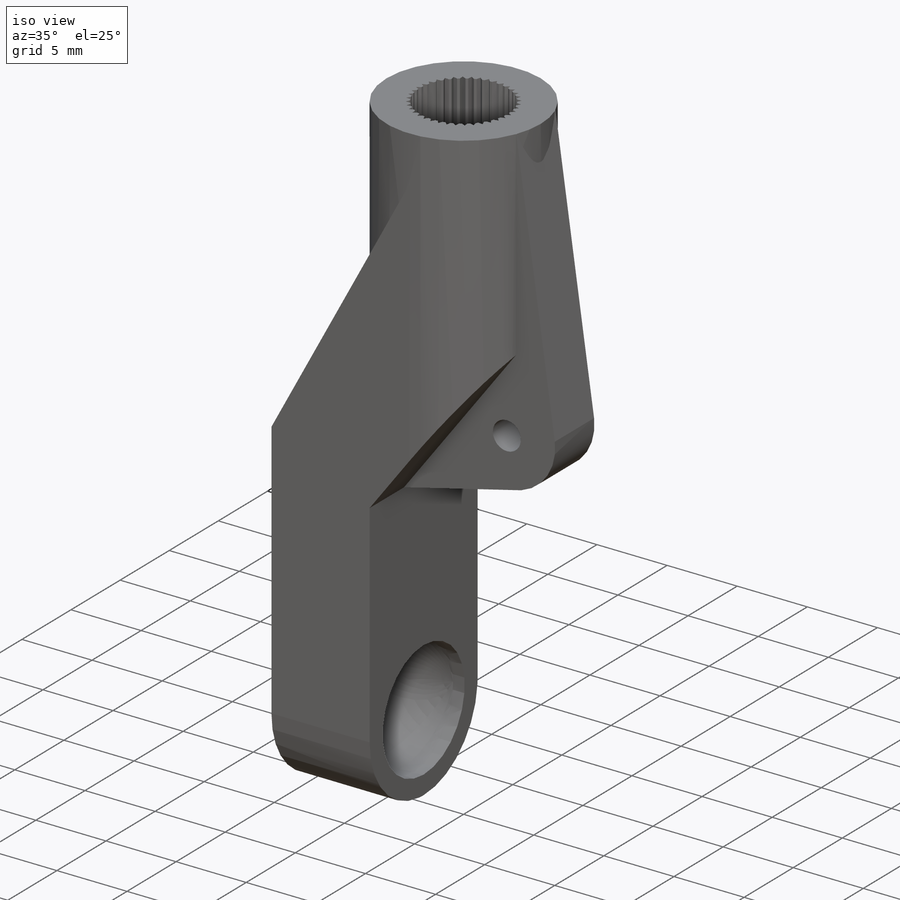
[diagram: iso view]
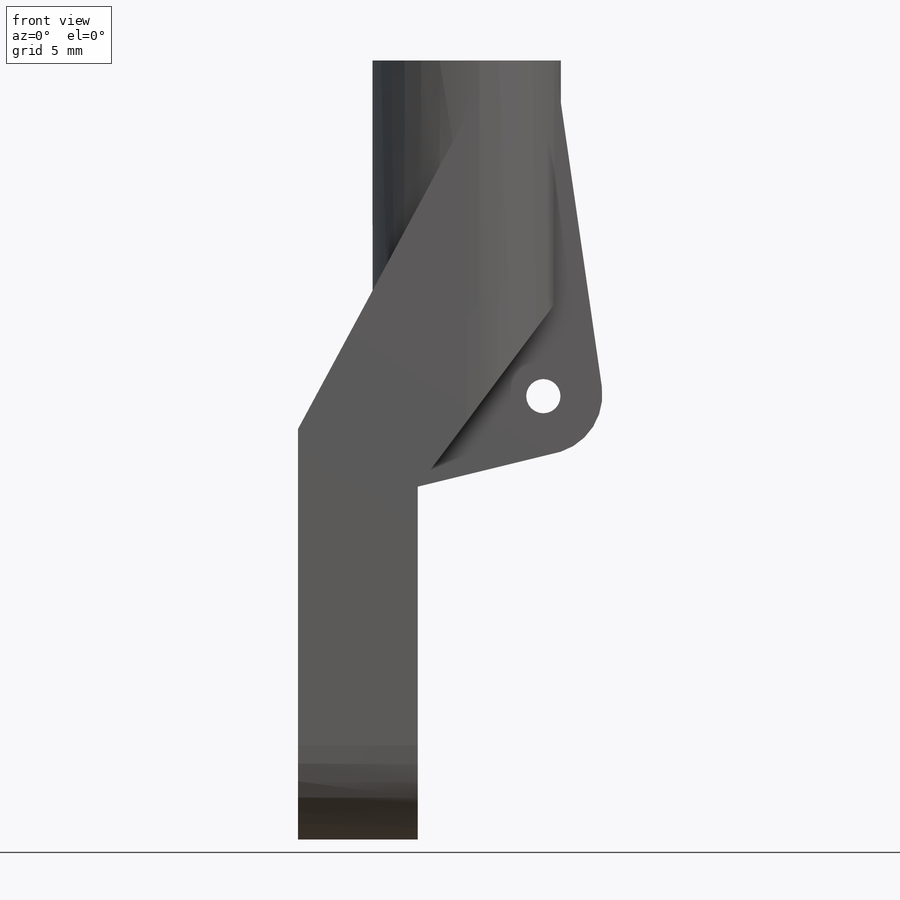
[diagram: front view]
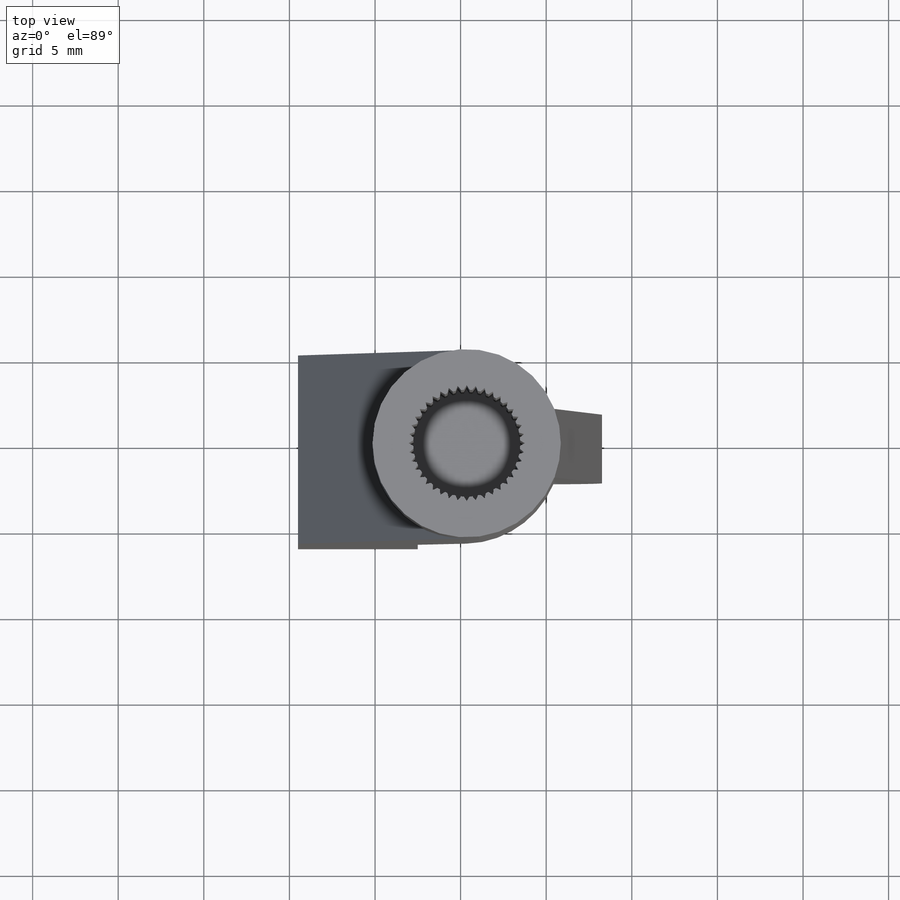
[diagram: top view]
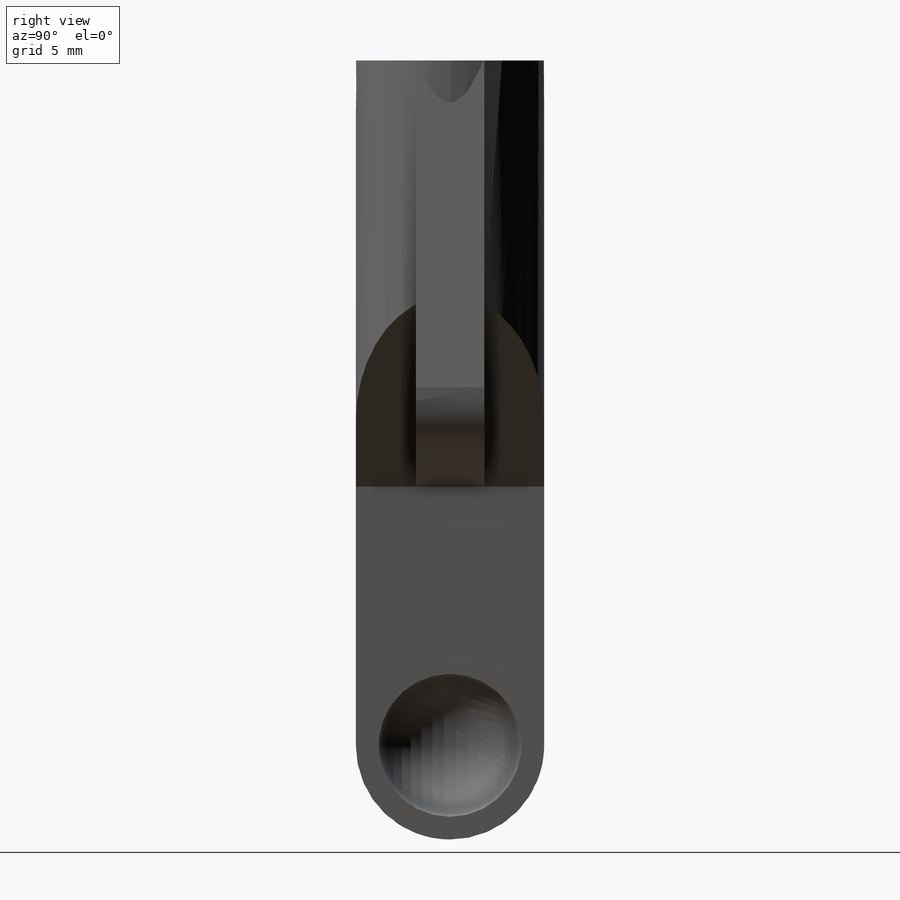
[diagram: right view]
SOLIDWORKS PART (.sldprt)
format: sldprt  version: not decoded by parser v0  size: 715,264 bytes
history: native  units: mm
features: sketch x7, cut_extrude x4, extrude x2, fillet x2, material x1, plane x1 (+16 scaffold rows collapsed)
feature tree (33):
  scaffold x16  (default folders/planes/origin — collapsed)
  material  "Material <not specified>"
  sketch  "Sketch1"  dims[c1.D1=11.0mm c1.D2=7.0mm c1.D3=20.78mm c1.D4=2.0mm c1.D5=2.0mm c2.D2=2.5mm c2.D6=2.5mm c2.D4=5.5mm]
  extrude  "Boss-Extrude4"  Depth=11mm
  fillet  "Fillet3"  Radius=5.5mm
  sketch  "Sketch4"
  cut_extrude  "Cut-Extrude3"  [1 undecoded]
  sketch  "Sketch7"
  cut_extrude  "Cut-Extrude9"  [1 undecoded]
  sketch  "3DSketch1"
  plane  "Plane4"
  sketch  "Sketch8"  dims[D1=6.25mm D2=40.0]
  sketch  "Sketch13"  dims[D1=3.5mm D2=0.35mm]
  extrude  "Boss-Extrude8"  Depth=4mm
  cut_extrude  "Cut-Extrude13"  Depth=13mm
  sketch  "Sketch16"  dims[D1=8.35mm D2=5.5mm]
  cut_extrude  "Cut-Extrude14"  Depth=5mm
  fillet  "Fillet5"  Radius=4.175mm
decode coverage: 10 of 15 modeling features carry decoded parameters
note: 2 parameter values undecoded
note: suppression state not decoded; provenance and decode notes live in map.json
